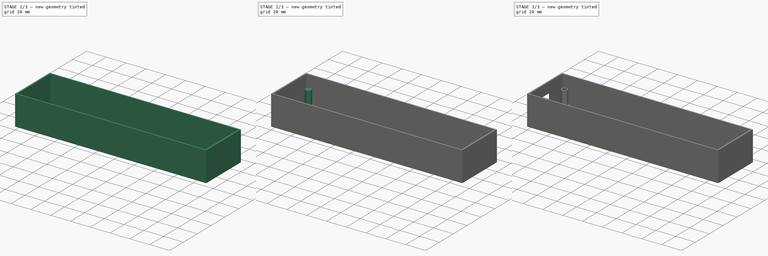
[diagram: build sequence overview — one tinted view per stage of 3, left to right]
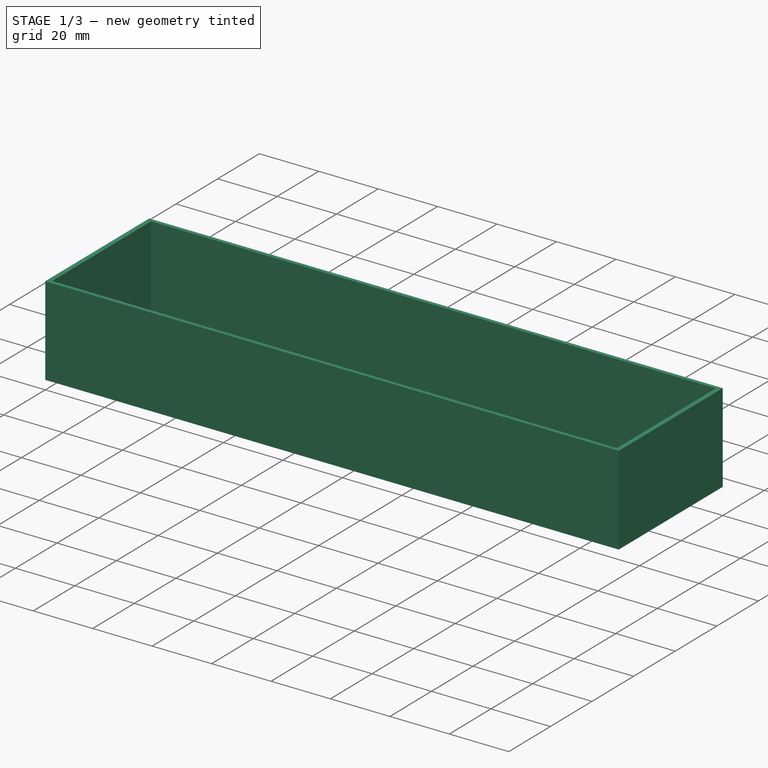
[diagram: stage 1 of 3 — iso view after this stage's code; geometry added in this stage tinted green]
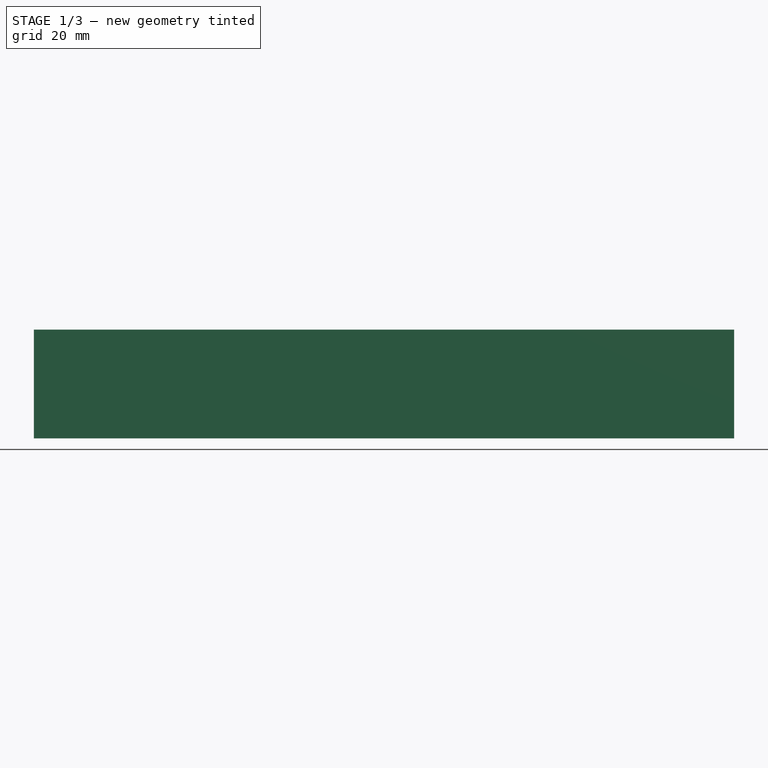
[diagram: stage 1 of 3 — front view after this stage's code; geometry added in this stage tinted green]
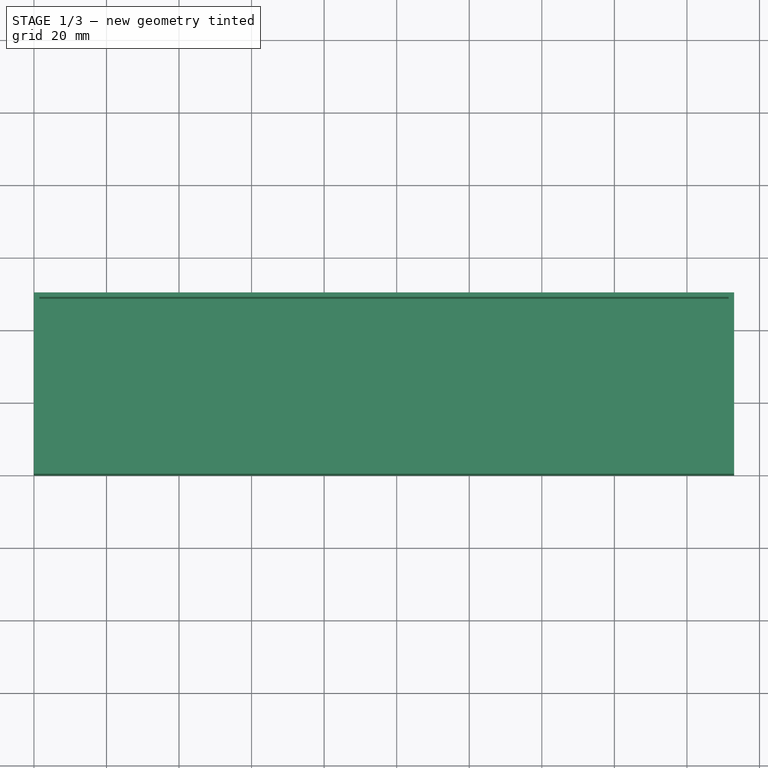
[diagram: stage 1 of 3 — top view after this stage's code; geometry added in this stage tinted green]
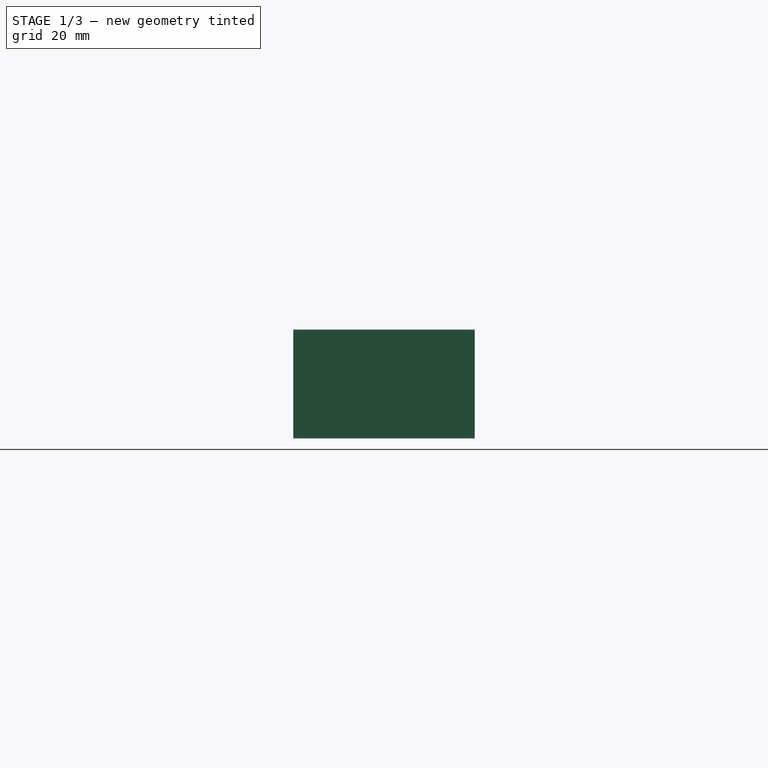
[diagram: stage 1 of 3 — right view after this stage's code; geometry added in this stage tinted green]
FCSTD DOCUMENT  (FreeCAD 0.20R29177 +426 (Git))
Label: SampleBox
License: All rights reserved
LicenseURL: http://en.wikipedia.org/wiki/All_rights_reserved
objects: Sketcher::SketchObject×6, PartDesign::Pad×4, PartDesign::Pocket×2, PartDesign::Body×1
note: 19 computed .brp shape members not serialized (recipe doc carries the construction recipe); baked Part::Feature solids carry a one-line shape summary decoded from their .brp

FEATURE [Sketcher::SketchObject] Sketch
  FullyConstrained = true
  MapMode = 5
  Support = -> [XY_Plane]
  sketch-geometry (4):
    g0: LineSegment StartX=0 StartY=0 StartZ=0 EndX=193 EndY=0 EndZ=0
    g1: LineSegment StartX=193 StartY=0 StartZ=0 EndX=193 EndY=50 EndZ=0
    g2: LineSegment StartX=193 StartY=50 StartZ=0 EndX=0 EndY=50 EndZ=0
    g3: LineSegment StartX=0 StartY=50 StartZ=0 EndX=0 EndY=0 EndZ=0
  constraints (11):
    c: Coincident(g0,g1)
    c: Coincident(g1,g2)
    c: Coincident(g2,g3)
    c: Coincident(g3,g0)
    c: Horizontal(g0)
    c: Horizontal(g2)
    c: Vertical(g1)
    c: Vertical(g3)
    c: Coincident(g0,g-1)
    c: DistanceX(g2,g2) = 193
    c: DistanceY(g3,g3) = 50
FEATURE [PartDesign::Pad] Pad
  Direction = (0,0,1)
  Length = 1.5
  Length2 = 10
  Profile = -> Sketch
  ReferenceAxis = -> Sketch [N_Axis]
  Type = 0
FEATURE [Sketcher::SketchObject] Sketch001
  ExternalGeometry = -> [Pad]
  FullyConstrained = true
  MapMode = 5
  Placement = pos=(0,0,1.5) rot=(0,0,1;0rad)
  Support = -> [Pad]
  sketch-geometry (12):
    g0: LineSegment StartX=1.5 StartY=48.75 StartZ=0 EndX=191.5 EndY=48.75 EndZ=0
    g1: LineSegment StartX=191.5 StartY=48.75 StartZ=0 EndX=191.5 EndY=1.25 EndZ=0
    g2: LineSegment StartX=191.5 StartY=1.25 StartZ=0 EndX=1.5 EndY=1.25 EndZ=0
    g3: LineSegment StartX=1.5 StartY=1.25 StartZ=0 EndX=1.5 EndY=48.75 EndZ=0
    g4: LineSegment StartX=3 StartY=48.5 StartZ=0 EndX=190 EndY=48.5 EndZ=0
    g5: LineSegment StartX=190 StartY=48.5 StartZ=0 EndX=190 EndY=1.5 EndZ=0
    g6: LineSegment StartX=190 StartY=1.5 StartZ=0 EndX=3 EndY=1.5 EndZ=0
    g7: LineSegment StartX=3 StartY=1.5 StartZ=0 EndX=3 EndY=48.5 EndZ=0
    g8: LineSegment StartX=0 StartY=0 StartZ=0 EndX=193 EndY=0 EndZ=0
    g9: LineSegment StartX=193 StartY=0 StartZ=0 EndX=193 EndY=50 EndZ=0
    g10: LineSegment StartX=193 StartY=50 StartZ=0 EndX=0 EndY=50 EndZ=0
    g11: LineSegment StartX=0 StartY=50 StartZ=0 EndX=0 EndY=0 EndZ=0
  constraints (34):
    c: Coincident(g0,g1)
    c: Coincident(g1,g2)
    c: Coincident(g2,g3)
    c: Coincident(g3,g0)
    c: Horizontal(g0)
    c: Horizontal(g2)
    c: Vertical(g1)
    c: Vertical(g3)
    c: DistanceX(g0,g0) = 190
    c: DistanceY(g3,g3) = 47.5
    c: DistanceY(g-1,g2) = 1.25
    c: DistanceX(g-1,g2) = 1.5
    c: Coincident(g4,g5)
    c: Coincident(g5,g6)
    c: Coincident(g6,g7)
    c: Coincident(g7,g4)
    c: Horizontal(g4)
    c: Horizontal(g6)
    c: Vertical(g5)
    c: Vertical(g7)
    c: DistanceX(g4,g4) = 187
    c: DistanceY(g7,g7) = 47
    c: DistanceX(g-1,g6) = 3
    c: DistanceY(g-1,g6) = 1.5
    c: Coincident(g8,g9)
    c: Coincident(g9,g10)
    c: Coincident(g10,g11)
    c: Coincident(g11,g8)
    c: Horizontal(g8)
    c: Horizontal(g10)
    c: Vertical(g9)
    c: Vertical(g11)
    c: Coincident(g8,g-1)
    c: Coincident(g9,g-3)
FEATURE [PartDesign::Pad] Pad001
  BaseFeature = -> Pad
  Direction = (0,0,1)
  Length = 28.5
  Length2 = 10
  Profile = -> Sketch001
  ReferenceAxis = -> Sketch001 [N_Axis]
  Type = 0
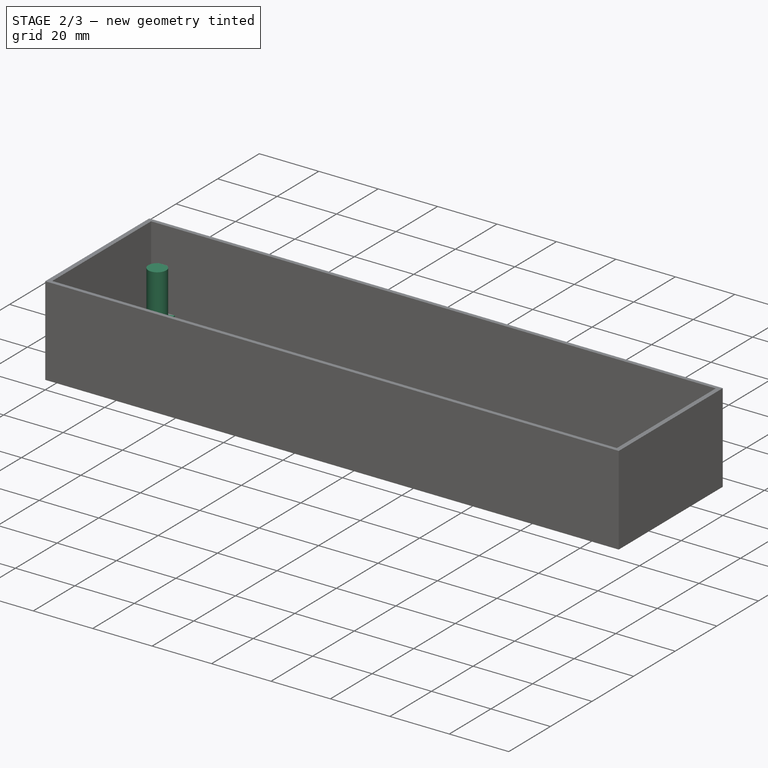
[diagram: stage 2 of 3 — iso view after this stage's code; geometry added in this stage tinted green]
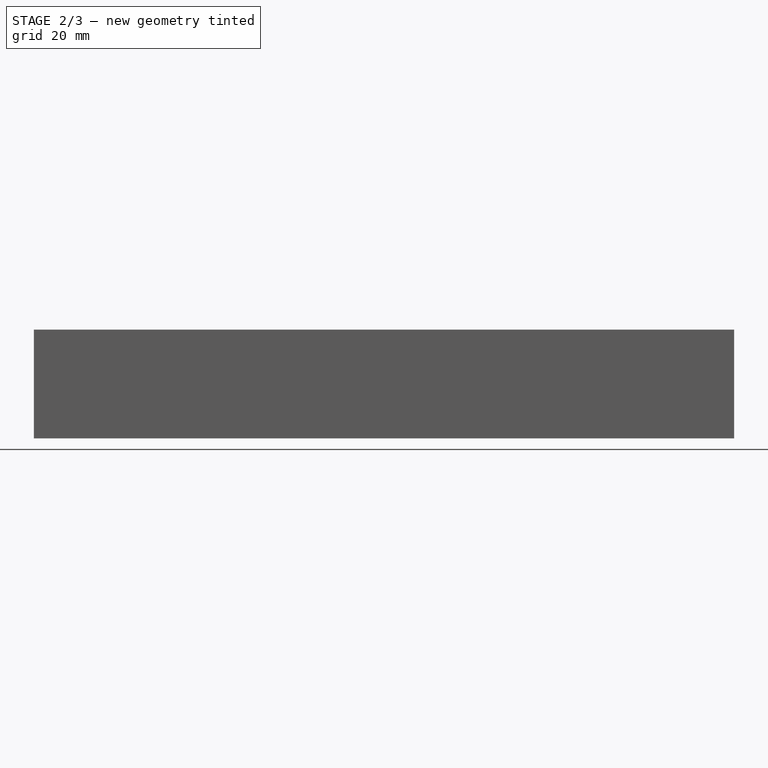
[diagram: stage 2 of 3 — front view after this stage's code; geometry added in this stage tinted green]
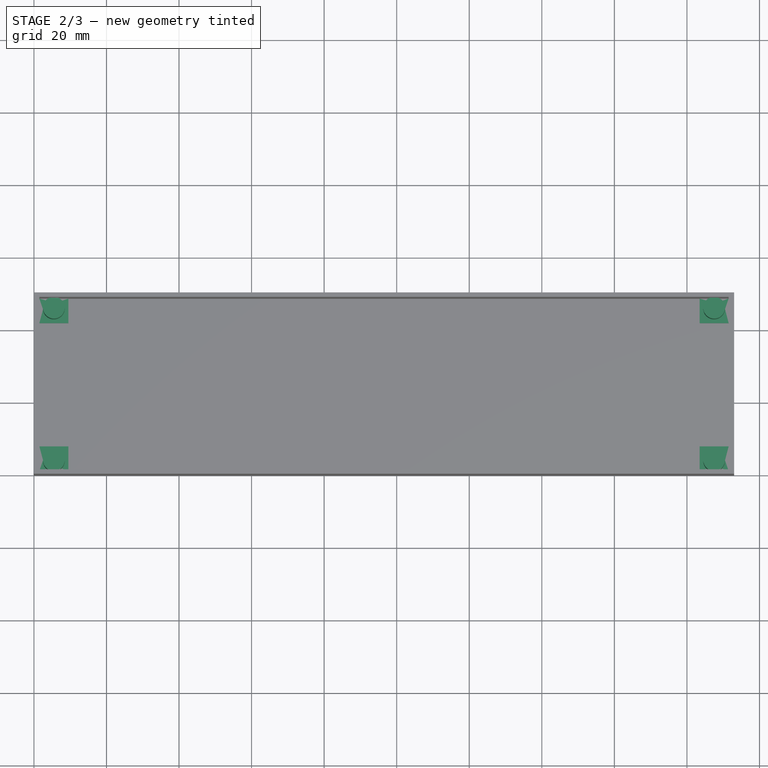
[diagram: stage 2 of 3 — top view after this stage's code; geometry added in this stage tinted green]
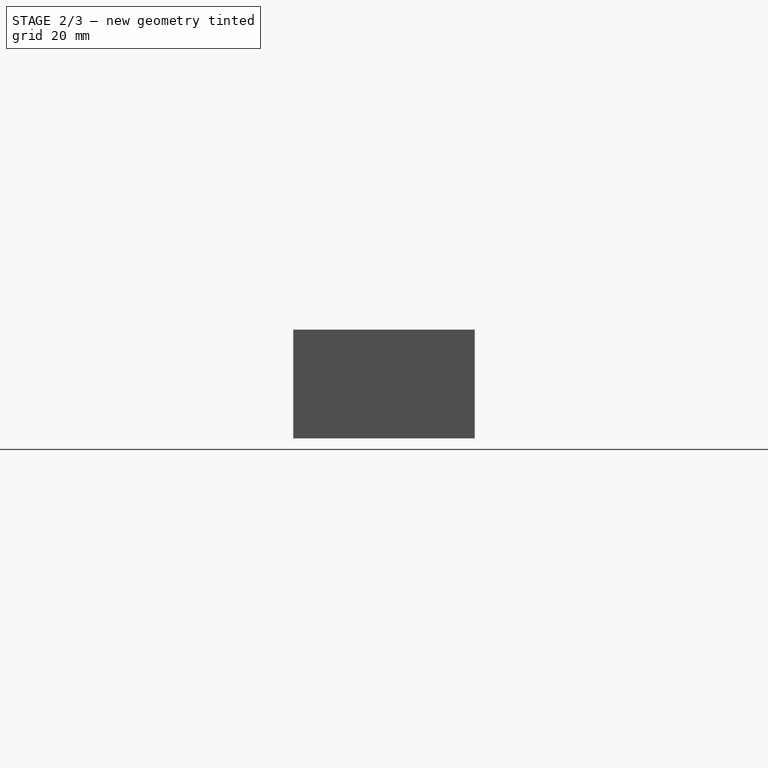
[diagram: stage 2 of 3 — right view after this stage's code; geometry added in this stage tinted green]
FEATURE [Sketcher::SketchObject] Sketch002
  ExternalGeometry = -> [Pad001]
  FullyConstrained = true
  MapMode = 5
  Placement = pos=(0,0,1.5) rot=(0,0,1;0rad)
  Support = -> [Pad001]
  sketch-geometry (20):
    g0: LineSegment StartX=5.5 StartY=46 StartZ=0 EndX=187.5 EndY=46 EndZ=0
    g1: LineSegment StartX=187.5 StartY=46 StartZ=0 EndX=187.5 EndY=4 EndZ=0
    g2: LineSegment StartX=187.5 StartY=4 StartZ=0 EndX=5.5 EndY=4 EndZ=0
    g3: LineSegment StartX=5.5 StartY=4 StartZ=0 EndX=5.5 EndY=46 EndZ=0
    g4: LineSegment StartX=1.5 StartY=48.75 StartZ=0 EndX=9.5 EndY=48.75 EndZ=0
    g5: LineSegment StartX=9.5 StartY=48.75 StartZ=0 EndX=9.5 EndY=42 EndZ=0
    g6: LineSegment StartX=9.5 StartY=42 StartZ=0 EndX=1.5 EndY=42 EndZ=0
    g7: LineSegment StartX=1.5 StartY=42 StartZ=0 EndX=1.5 EndY=48.75 EndZ=0
    g8: LineSegment StartX=191.5 StartY=48.75 StartZ=0 EndX=183.5 EndY=48.75 EndZ=0
    g9: LineSegment StartX=183.5 StartY=48.75 StartZ=0 EndX=183.5 EndY=42 EndZ=0
    g10: LineSegment StartX=183.5 StartY=42 StartZ=0 EndX=191.5 EndY=42 EndZ=0
    g11: LineSegment StartX=191.5 StartY=42 StartZ=0 EndX=191.5 EndY=48.75 EndZ=0
    g12: LineSegment StartX=191.5 StartY=1.25 StartZ=0 EndX=183.5 EndY=1.25 EndZ=0
    g13: LineSegment StartX=183.5 StartY=1.25 StartZ=0 EndX=183.5 EndY=8 EndZ=0
    g14: LineSegment StartX=183.5 StartY=8 StartZ=0 EndX=191.5 EndY=8 EndZ=0
    g15: LineSegment StartX=191.5 StartY=8 StartZ=0 EndX=191.5 EndY=1.25 EndZ=0
    g16: LineSegment StartX=1.5 StartY=1.25 StartZ=0 EndX=9.5 EndY=1.25 EndZ=0
    g17: LineSegment StartX=9.5 StartY=1.25 StartZ=0 EndX=9.5 EndY=8 EndZ=0
    g18: LineSegment StartX=9.5 StartY=8 StartZ=0 EndX=1.5 EndY=8 EndZ=0
    g19: LineSegment StartX=1.5 StartY=8 StartZ=0 EndX=1.5 EndY=1.25 EndZ=0
  constraints (56):
    c: Coincident(g0,g1)
    c: Coincident(g1,g2)
    c: Coincident(g2,g3)
    c: Coincident(g3,g0)
    c: Horizontal(g0)
    c: Horizontal(g2)
    c: Vertical(g1)
    c: Vertical(g3)
    c: DistanceX(g-1,g2) = 5.5
    c: DistanceY(g-1,g2) = 4
    c: DistanceX(g-1,g0) = 187.5
    c: DistanceY(g-1,g0) = 46
    c: Coincident(g4,g5)
    c: Coincident(g5,g6)
    c: Coincident(g6,g7)
    c: Coincident(g7,g4)
    c: Horizontal(g4)
    c: Horizontal(g6)
    c: Vertical(g5)
    c: Vertical(g7)
    c: Coincident(g4,g-3)
    c: DistanceX(g0,g4) = 4
    c: DistanceY(g5,g0) = 4
    c: Coincident(g8,g9)
    c: Coincident(g9,g10)
    c: Coincident(g10,g11)
    c: Coincident(g11,g8)
    c: Horizontal(g8)
    c: Horizontal(g10)
    c: Vertical(g9)
    c: Vertical(g11)
    c: Coincident(g8,g-3)
    c: DistanceX(g9,g0) = 4
    c: DistanceY(g9,g0) = 4
    c: Coincident(g12,g13)
    c: Coincident(g13,g14)
    c: Coincident(g14,g15)
    c: Coincident(g15,g12)
    c: Horizontal(g12)
    c: Horizontal(g14)
    c: Vertical(g13)
    c: Vertical(g15)
    c: Coincident(g12,g-4)
    c: DistanceX(g13,g1) = 4
    c: DistanceY(g1,g13) = 4
    c: Coincident(g16,g17)
    c: Coincident(g17,g18)
    c: Coincident(g18,g19)
    c: Coincident(g19,g16)
    c: Horizontal(g16)
    c: Horizontal(g18)
    c: Vertical(g17)
    c: Vertical(g19)
    c: Coincident(g16,g-4)
    c: DistanceX(g2,g17) = 4
    c: DistanceY(g2,g17) = 4
FEATURE [PartDesign::Pad] Pad002
  BaseFeature = -> Pad001
  Direction = (0,0,1)
  Length = 2
  Length2 = 10
  Profile = -> Sketch002
  ReferenceAxis = -> Sketch002 [N_Axis]
  Type = 0
FEATURE [Sketcher::SketchObject] Sketch003
  ExternalGeometry = -> [Pad002]
  FullyConstrained = true
  MapMode = 5
  Placement = pos=(0,0,3.5) rot=(0,0,1;0rad)
  Support = -> [Pad002]
  sketch-geometry (8):
    g0: LineSegment StartX=5.5 StartY=46 StartZ=0 EndX=187.5 EndY=46 EndZ=0
    g1: LineSegment StartX=187.5 StartY=46 StartZ=0 EndX=187.5 EndY=4 EndZ=0
    g2: LineSegment StartX=187.5 StartY=4 StartZ=0 EndX=5.5 EndY=4 EndZ=0
    g3: LineSegment StartX=5.5 StartY=4 StartZ=0 EndX=5.5 EndY=46 EndZ=0
    g4: Circle CenterX=5.5 CenterY=46 CenterZ=0 NormalX=0 NormalY=0 NormalZ=1 AngleXU=0 Radius=3
    g5: Circle CenterX=5.5 CenterY=4 CenterZ=0 NormalX=0 NormalY=0 NormalZ=1 AngleXU=0 Radius=3
    g6: Circle CenterX=187.5 CenterY=46 CenterZ=0 NormalX=0 NormalY=0 NormalZ=1 AngleXU=0 Radius=3
    g7: Circle CenterX=187.5 CenterY=4 CenterZ=0 NormalX=0 NormalY=0 NormalZ=1 AngleXU=0 Radius=3
  constraints (20):
    c: Coincident(g0,g1)
    c: Coincident(g1,g2)
    c: Coincident(g2,g3)
    c: Coincident(g3,g0)
    c: Horizontal(g0)
    c: Horizontal(g2)
    c: Vertical(g1)
    c: Vertical(g3)
    c: DistanceX(g-1,g2) = 5.5
    c: DistanceY(g-1,g2) = 4
    c: DistanceY(g-1,g0) = 46
    c: DistanceX(g-1,g0) = 187.5
    c: Coincident(g4,g0)
    c: Coincident(g5,g2)
    c: Coincident(g6,g0)
    c: Coincident(g7,g1)
    c: Equal(g6,g7)
    c: Equal(g7,g5)
    c: Equal(g5,g4)
    c: Diameter(g4) = 6
FEATURE [PartDesign::Pad] Pad003
  BaseFeature = -> Pad002
  Direction = (0,0,1)
  Length = 14.5
  Length2 = 10
  Profile = -> Sketch003
  ReferenceAxis = -> Sketch003 [N_Axis]
  Type = 0
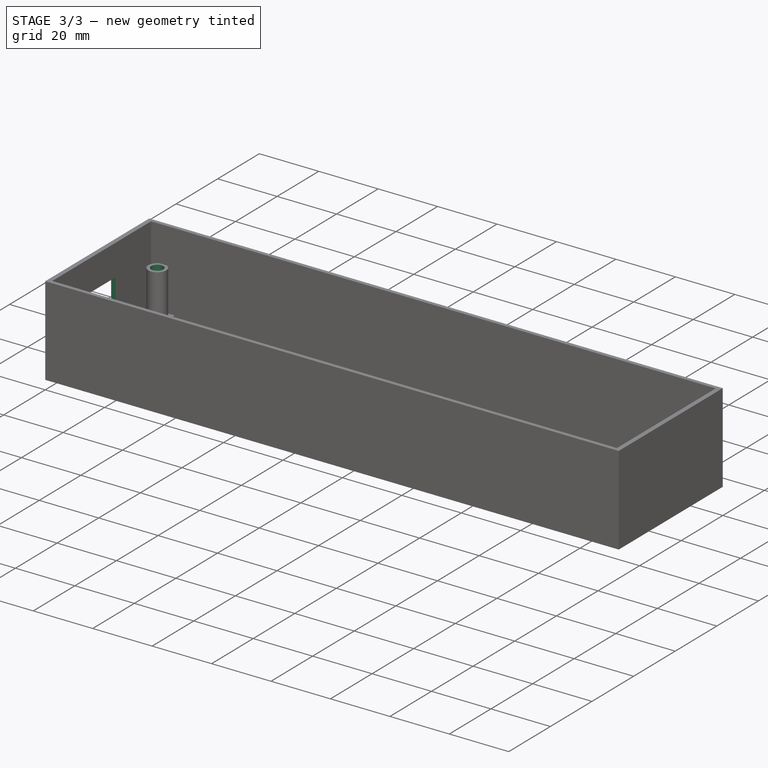
[diagram: stage 3 of 3 — iso view after this stage's code; geometry added in this stage tinted green]
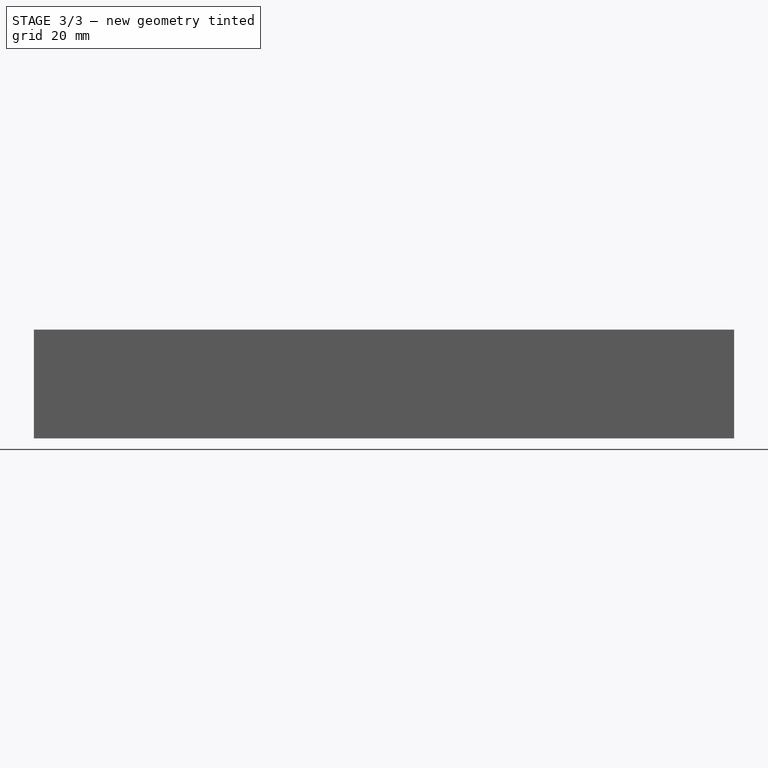
[diagram: stage 3 of 3 — front view after this stage's code; geometry added in this stage tinted green]
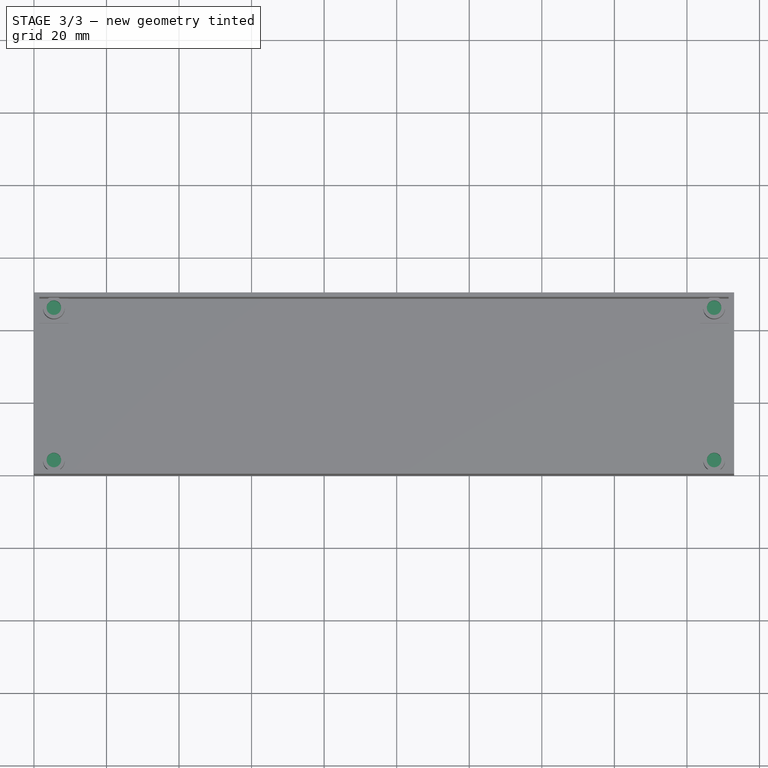
[diagram: stage 3 of 3 — top view after this stage's code; geometry added in this stage tinted green]
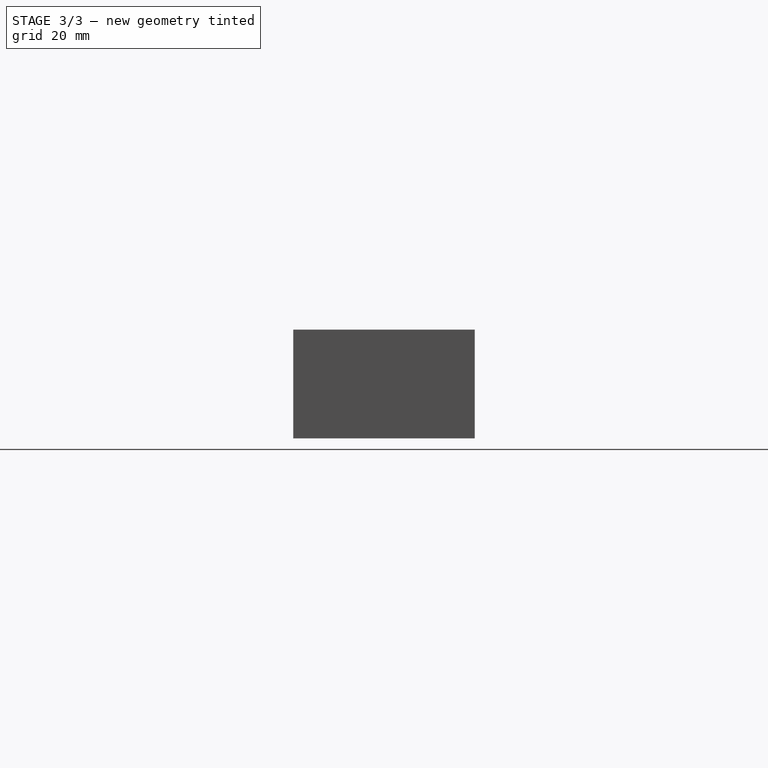
[diagram: stage 3 of 3 — right view after this stage's code; geometry added in this stage tinted green]
FEATURE [Sketcher::SketchObject] Sketch004
  ExternalGeometry = -> [Pad003]
  FullyConstrained = true
  MapMode = 5
  Placement = pos=(0,0,18) rot=(0,0,1;0rad)
  Support = -> [Pad003]
  sketch-geometry (4):
    g0: Circle CenterX=187.5 CenterY=46 CenterZ=0 NormalX=0 NormalY=0 NormalZ=1 AngleXU=0 Radius=2
    g1: Circle CenterX=187.5 CenterY=4 CenterZ=0 NormalX=0 NormalY=0 NormalZ=1 AngleXU=0 Radius=2
    g2: Circle CenterX=5.5 CenterY=46 CenterZ=0 NormalX=0 NormalY=0 NormalZ=1 AngleXU=0 Radius=2
    g3: Circle CenterX=5.5 CenterY=4 CenterZ=0 NormalX=0 NormalY=0 NormalZ=1 AngleXU=0 Radius=2
  constraints (8):
    c: Coincident(g0,g-3)
    c: Coincident(g1,g-4)
    c: Coincident(g2,g-5)
    c: Coincident(g3,g-6)
    c: Equal(g2,g3)
    c: Equal(g3,g0)
    c: Equal(g0,g1)
    c: Diameter(g0) = 4
FEATURE [PartDesign::Pocket] Pocket
  BaseFeature = -> Pad003
  Direction = (0,0,-1)
  Length = 5
  Length2 = 5
  Profile = -> Sketch004
  ReferenceAxis = -> Sketch004 [N_Axis]
  Type = 0
FEATURE [Sketcher::SketchObject] Sketch005
  ExternalGeometry = -> [Pocket]
  FullyConstrained = true
  MapMode = 5
  Placement = pos=(0,0,0) rot=(0.57735,-0.57735,-0.57735;2.0944rad)
  Support = -> [Pocket]
  sketch-geometry (4):
    g0: LineSegment StartX=-31.7 StartY=19.5 StartZ=0 EndX=-18.3 EndY=19.5 EndZ=0
    g1: LineSegment StartX=-18.3 StartY=19.5 StartZ=0 EndX=-18.3 EndY=7.5 EndZ=0
    g2: LineSegment StartX=-18.3 StartY=7.5 StartZ=0 EndX=-31.7 EndY=7.5 EndZ=0
    g3: LineSegment StartX=-31.7 StartY=7.5 StartZ=0 EndX=-31.7 EndY=19.5 EndZ=0
  constraints (12):
    c: Coincident(g0,g1)
    c: Coincident(g1,g2)
    c: Coincident(g2,g3)
    c: Coincident(g3,g0)
    c: Horizontal(g0)
    c: Horizontal(g2)
    c: Vertical(g1)
    c: Vertical(g3)
    c: DistanceX(g-3,g0) = 18.3
    c: DistanceX(g0,g-3) = 18.3
    c: DistanceY(g0,g-3) = 10.5
    c: DistanceY(g3,g3) = 12
FEATURE [PartDesign::Pocket] Pocket001
  BaseFeature = -> Pocket
  Direction = (1,0,0)
  Length = 5
  Length2 = 5
  Profile = -> Sketch005
  ReferenceAxis = -> Sketch005 [N_Axis]
  Type = 0
FEATURE [PartDesign::Body] Body
  Group = -> [Sketch,Pad,Sketch001,Pad001,Sketch002,Pad002,Sketch003,Pad003,Sketch004,Pocket,Sketch005,Pocket001]
  Origin = -> Origin
  Tip = -> Pocket001
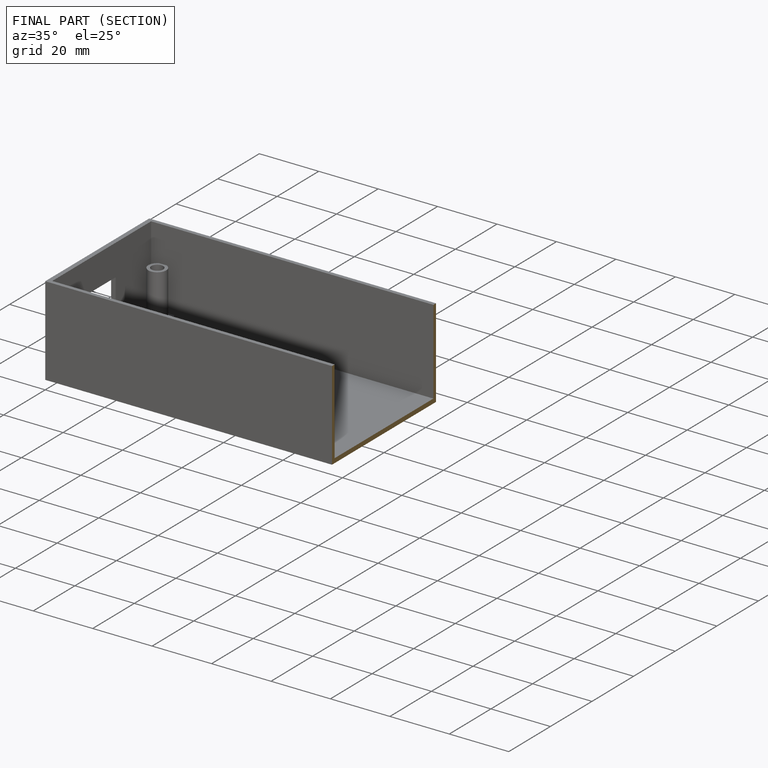
[diagram: finished part — half-section view (interior)]
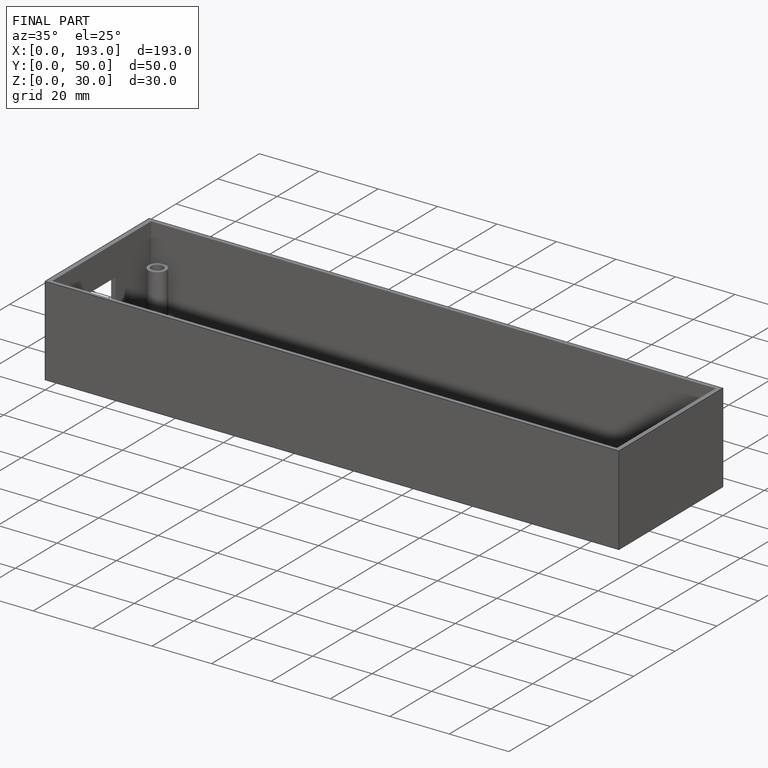
[diagram: finished part — iso view with bounding-box wireframe]
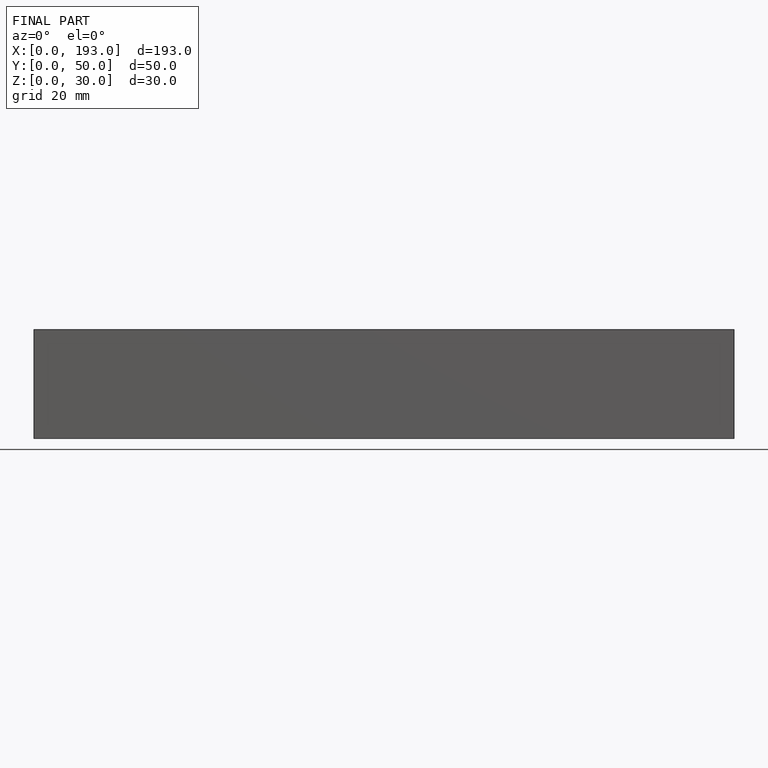
[diagram: finished part — front view with bounding-box wireframe]
